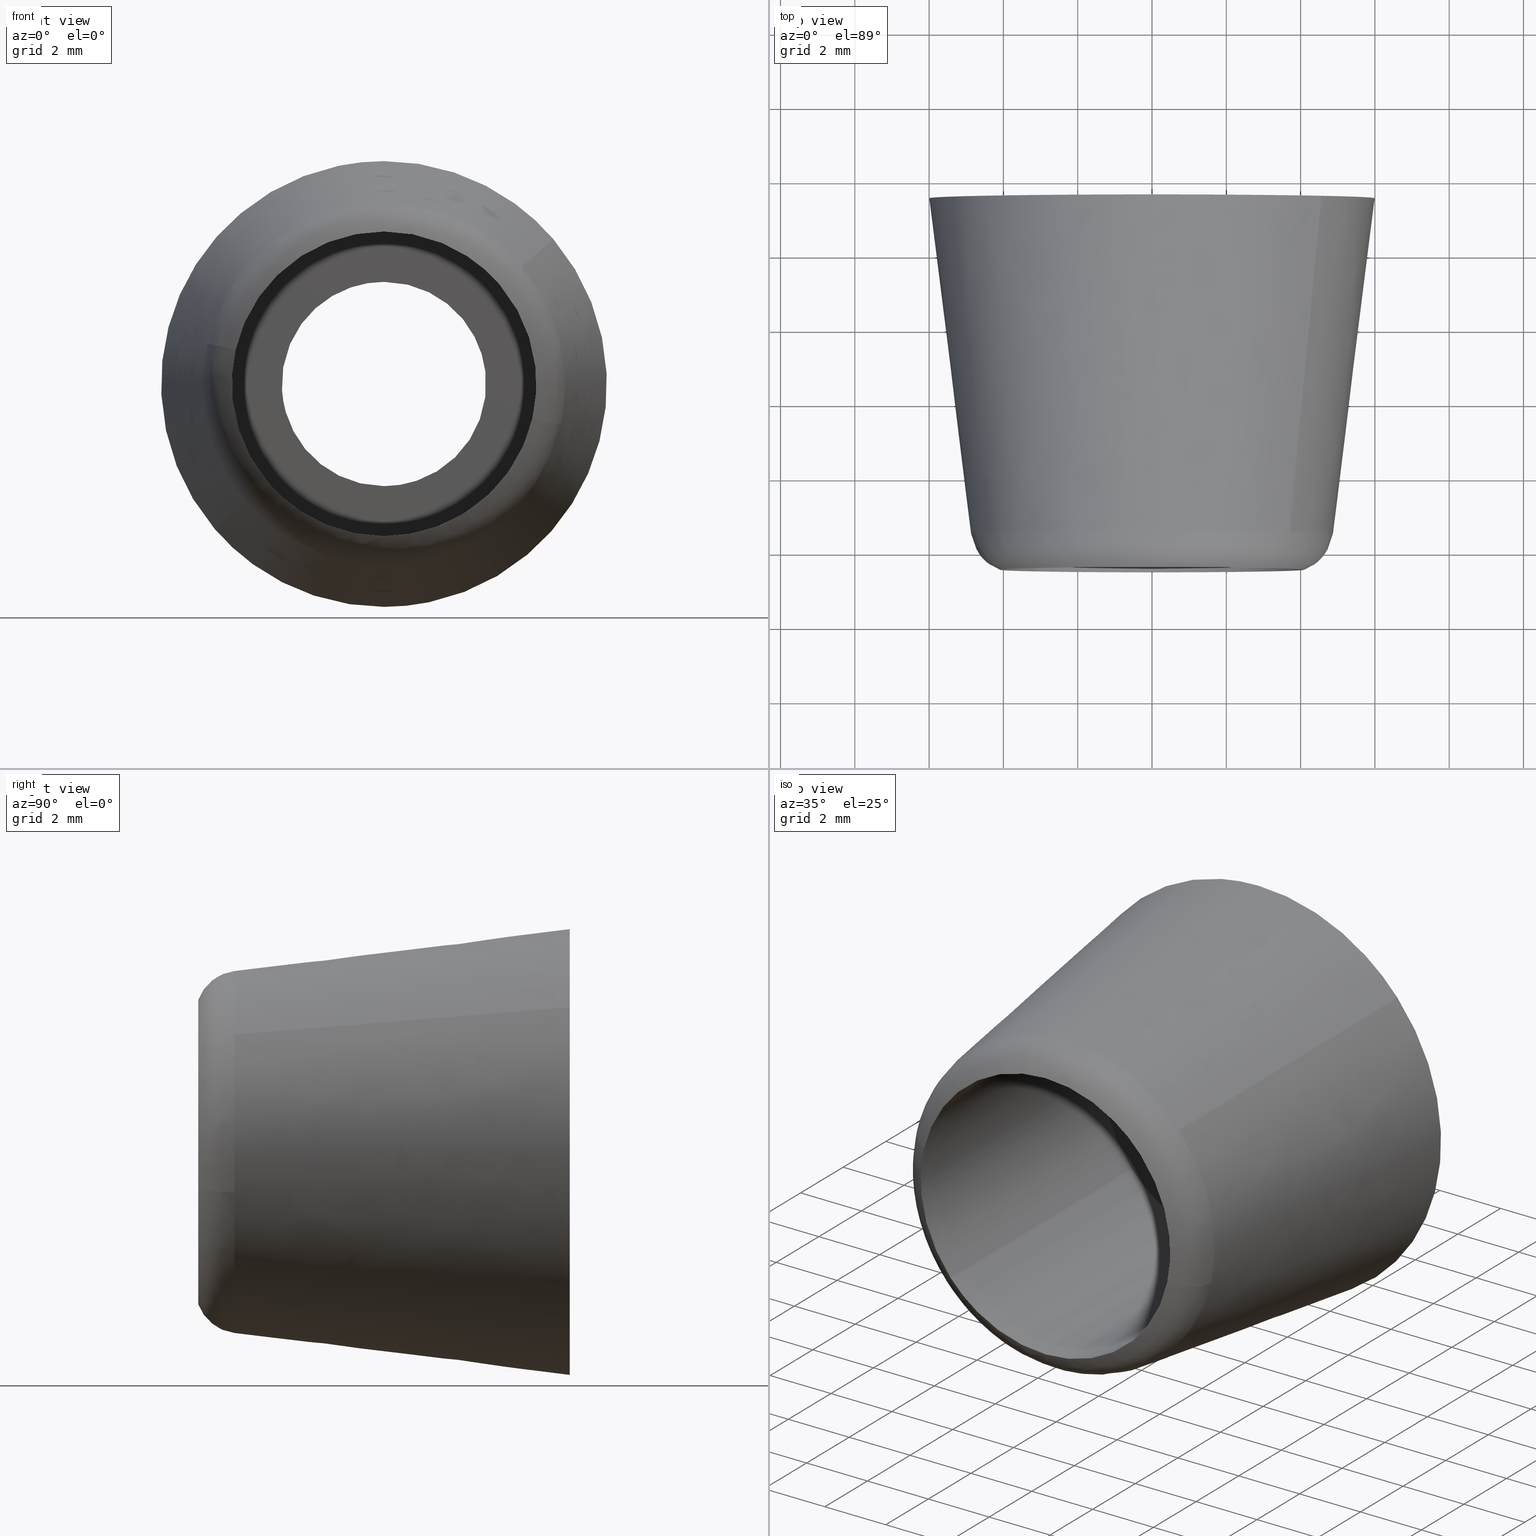
[diagram: canonical four-view strip — front | top / right | iso, engineering-drawing reading convention]
A machine part, canonical four-view strip (front | top / right | iso — engineering-drawing reading convention). The complete STEP part file that produces these views, byte-faithful:
ISO-10303-21;
HEADER;
/****************************************************************
 * Generated by software with PDE/Lib inside                    *
 * PDElib Version 4.4.1-0003, patched  Thursday August 19 11:58 *
 * International Technegroup Inc. (www.iti-oh.com)              *
 ****************************************************************/
FILE_DESCRIPTION((''),'2;1');
FILE_NAME('','2005-10-12T14:40:24',(''),(''),'','CADfix','');
FILE_SCHEMA(('AUTOMOTIVE_DESIGN'));
ENDSEC;
DATA;
#5=APPLICATION_CONTEXT('automotive design');
#6=APPLICATION_PROTOCOL_DEFINITION('Draft International Standard','automotive_design',1998,#5);
#7=PRODUCT_CONTEXT('None',#5,'mechanical');
#8=PRODUCT('facing ring','','None',(#7));
#9=PRODUCT_RELATED_PRODUCT_CATEGORY('part','description',(#8));
#10=PRODUCT_DEFINITION_FORMATION('None','None',#8);
#11=PRODUCT_DEFINITION_CONTEXT('part definition',#5,'design');
#12=PRODUCT_DEFINITION('None','None',#10,#11);
#18=(NAMED_UNIT(*)PLANE_ANGLE_UNIT()SI_UNIT($,.RADIAN.));
#19=DIMENSIONAL_EXPONENTS(0.0,0.0,0.0,0.0,0.0,0.0,0.0);
#20=PLANE_ANGLE_MEASURE_WITH_UNIT(PLANE_ANGLE_MEASURE(0.017453292500000),#18);
#24=(CONVERSION_BASED_UNIT('DEGREE',#20)NAMED_UNIT(#19)PLANE_ANGLE_UNIT());
#28=(NAMED_UNIT(*)SI_UNIT($,.STERADIAN.)SOLID_ANGLE_UNIT());
#32=(LENGTH_UNIT()NAMED_UNIT(*)SI_UNIT(.MILLI.,.METRE.));
#34=UNCERTAINTY_MEASURE_WITH_UNIT(LENGTH_MEASURE(0.001000000000000),#32,'DISTANCE_ACCURACY_VALUE','');
#36=(GEOMETRIC_REPRESENTATION_CONTEXT(3)GLOBAL_UNCERTAINTY_ASSIGNED_CONTEXT((#34))GLOBAL_UNIT_ASSIGNED_CONTEXT((#24,#28,#32))REPRESENTATION_CONTEXT('None','None'));
#37=AXIS2_PLACEMENT_3D('',#38,#39,#40);
#38=CARTESIAN_POINT('',(0.0,0.0,0.0));
#39=DIRECTION('',(0.0,0.0,1.0));
#40=DIRECTION('',(1.0,0.0,0.0));
#41=ADVANCED_BREP_SHAPE_REPRESENTATION('',(#37,#787),#36);
#42=PRODUCT_DEFINITION_SHAPE('','',#12);
#43=SHAPE_DEFINITION_REPRESENTATION(#42,#41);
#44=CARTESIAN_POINT('',(2.730776197500084,-0.037500000000000,0.324594145306086));
#45=CARTESIAN_POINT('',(2.740065942483665,-0.037500000000000,0.246440503754439));
#46=CARTESIAN_POINT('',(2.744870695660134,-0.037500000000000,0.167883483720857));
#47=CARTESIAN_POINT('',(2.912754179380990,-0.037500000000000,-2.576987211939278));
#48=CARTESIAN_POINT('',(0.167883483720857,-0.037500000000000,-2.744870695660134));
#49=CARTESIAN_POINT('',(-2.576987211939278,-0.037500000000000,-2.912754179380990));
#50=CARTESIAN_POINT('',(-2.744870695660134,-0.037500000000000,-0.167883483720857));
#51=CARTESIAN_POINT('',(2.730776197500084,1.538437500000000,0.324594145306086));
#52=CARTESIAN_POINT('',(2.740065942483665,1.538437500000001,0.246440503754439));
#53=CARTESIAN_POINT('',(2.744870695660134,1.538437500000000,0.167883483720857));
#54=CARTESIAN_POINT('',(2.912754179380990,1.538437500000001,-2.576987211939278));
#55=CARTESIAN_POINT('',(0.167883483720857,1.538437500000000,-2.744870695660134));
#56=CARTESIAN_POINT('',(-2.576987211939278,1.538437500000001,-2.912754179380990));
#57=CARTESIAN_POINT('',(-2.744870695660134,1.538437500000000,-0.167883483720857));
#65=(BOUNDED_SURFACE()B_SPLINE_SURFACE(2,1,((#44,#51),(#45,#52),(#46,#53),(#47,#54),(#48,#55),(#49,#56),(#50,#57)),.UNSPECIFIED.,.F.,.F.,.U.)B_SPLINE_SURFACE_WITH_KNOTS((3,2,2,3),(2,2),(0.0,0.182253967444162,4.738603153548208,9.294952339652255),(0.0,1.0),.UNSPECIFIED.)GEOMETRIC_REPRESENTATION_ITEM()RATIONAL_B_SPLINE_SURFACE(((0.977505800795127,0.977505800795127),(0.988284271247462,0.988284271247462),(1.0,1.0),(0.707106781186548,0.707106781186548),(1.0,1.0),(0.707106781186548,0.707106781186548),(1.0,1.0)))REPRESENTATION_ITEM('')SURFACE());
#66=CARTESIAN_POINT('',(2.730776731083356,4.981067E-014,0.324589656263510));
#67=VERTEX_POINT('',#66);
#68=CARTESIAN_POINT('',(0.0,0.0,-2.750000000000000));
#69=VERTEX_POINT('',#68);
#70=CARTESIAN_POINT('',(2.730776731083356,4.981067E-014,0.324589656263510));
#71=CARTESIAN_POINT('',(2.750000000000000,0.0,0.162864060793226));
#72=CARTESIAN_POINT('',(2.750000000000000,0.0,0.0));
#73=CARTESIAN_POINT('',(2.750000000000000,0.0,-2.750000000000000));
#74=CARTESIAN_POINT('',(0.0,0.0,-2.750000000000000));
#82=(BOUNDED_CURVE()B_SPLINE_CURVE(2,(#70,#71,#72,#73,#74),.UNSPECIFIED.,.F.,.U.)B_SPLINE_CURVE_WITH_KNOTS((3,2,3),(0.229562751335135,0.250000000000000,0.500000000000000),.UNSPECIFIED.)CURVE()GEOMETRIC_REPRESENTATION_ITEM()RATIONAL_B_SPLINE_CURVE((0.956027298726181,0.976056273819427,1.0,0.707106781186548,1.0))REPRESENTATION_ITEM(''));
#83=EDGE_CURVE('',#67,#69,#82,.T.);
#84=ORIENTED_EDGE('',*,*,#83,.F.);
#85=CARTESIAN_POINT('',(2.730776724657624,1.500000000000000,0.324589710324017));
#86=VERTEX_POINT('',#85);
#87=CARTESIAN_POINT('',(2.730776731083356,4.981067E-014,0.324589656263510));
#88=CARTESIAN_POINT('',(2.730776724657624,1.500000000000000,0.324589710324017));
#89=QUASI_UNIFORM_CURVE('',1,(#87,#88),.UNSPECIFIED.,.F.,.U.);
#90=EDGE_CURVE('',#67,#86,#89,.T.);
#91=ORIENTED_EDGE('',*,*,#90,.T.);
#92=CARTESIAN_POINT('',(0.0,1.500000000000000,-2.750000000000000));
#93=VERTEX_POINT('',#92);
#94=CARTESIAN_POINT('',(2.730776724657625,1.500000000000000,0.324589710324016));
#95=CARTESIAN_POINT('',(2.750000000000000,1.500000000000000,0.162864088109226));
#96=CARTESIAN_POINT('',(2.750000000000000,1.500000000000000,0.0));
#97=CARTESIAN_POINT('',(2.750000000000000,1.500000000000000,-2.750000000000000));
#98=CARTESIAN_POINT('',(0.0,1.500000000000000,-2.750000000000000));
#106=(BOUNDED_CURVE()B_SPLINE_CURVE(2,(#94,#95,#96,#97,#98),.UNSPECIFIED.,.F.,.U.)B_SPLINE_CURVE_WITH_KNOTS((3,2,3),(0.229562747989419,0.250000000000000,0.500000000000000),.UNSPECIFIED.)CURVE()GEOMETRIC_REPRESENTATION_ITEM()RATIONAL_B_SPLINE_CURVE((0.956027292168423,0.976056269899677,1.0,0.707106781186548,1.0))REPRESENTATION_ITEM(''));
#107=EDGE_CURVE('',#86,#93,#106,.T.);
#108=ORIENTED_EDGE('',*,*,#107,.T.);
#109=CARTESIAN_POINT('',(-2.744870732306453,1.500000000000000,-0.167882884556682));
#110=VERTEX_POINT('',#109);
#111=CARTESIAN_POINT('',(0.0,1.500000000000000,-2.750000000000000));
#112=CARTESIAN_POINT('',(-2.586942815482608,1.499999999999999,-2.750000000000000));
#113=CARTESIAN_POINT('',(-2.744870732306454,1.500000000000000,-0.167882884556682));
#121=(BOUNDED_CURVE()B_SPLINE_CURVE(2,(#111,#112,#113),.UNSPECIFIED.,.F.,.U.)B_SPLINE_CURVE_WITH_KNOTS((3,3),(0.500000000000000,0.739333037570735),.UNSPECIFIED.)CURVE()GEOMETRIC_REPRESENTATION_ITEM()RATIONAL_B_SPLINE_CURVE((1.0,0.719603905030026,0.976072203117141))REPRESENTATION_ITEM(''));
#122=EDGE_CURVE('',#93,#110,#121,.T.);
#123=ORIENTED_EDGE('',*,*,#122,.T.);
#124=CARTESIAN_POINT('',(-2.744870732754064,-2.588207E-015,-0.167882877238264));
#125=VERTEX_POINT('',#124);
#126=CARTESIAN_POINT('',(-2.744870732754064,-2.588207E-015,-0.167882877238264));
#127=CARTESIAN_POINT('',(-2.744870732306453,1.500000000000000,-0.167882884556682));
#128=QUASI_UNIFORM_CURVE('',1,(#126,#127),.UNSPECIFIED.,.F.,.U.);
#129=EDGE_CURVE('',#125,#110,#128,.T.);
#130=ORIENTED_EDGE('',*,*,#129,.F.);
#131=CARTESIAN_POINT('',(0.0,0.0,-2.750000000000000));
#132=CARTESIAN_POINT('',(-2.586942829303095,0.0,-2.750000000000000));
#133=CARTESIAN_POINT('',(-2.744870732754064,-2.588207E-015,-0.167882877238264));
#141=(BOUNDED_CURVE()B_SPLINE_CURVE(2,(#131,#132,#133),.UNSPECIFIED.,.F.,.U.)B_SPLINE_CURVE_WITH_KNOTS((3,3),(0.500000000000000,0.739333038490830),.UNSPECIFIED.)CURVE()GEOMETRIC_REPRESENTATION_ITEM()RATIONAL_B_SPLINE_CURVE((1.0,0.719603903952068,0.976072205089081))REPRESENTATION_ITEM(''));
#142=EDGE_CURVE('',#69,#125,#141,.T.);
#143=ORIENTED_EDGE('',*,*,#142,.F.);
#144=EDGE_LOOP('',(#84,#91,#108,#123,#130,#143));
#145=FACE_OUTER_BOUND('',#144,.T.);
#146=ADVANCED_FACE('',(#145),#65,.F.);
#147=CARTESIAN_POINT('',(-2.742557265340139,-0.037500000000000,-0.205707735106791));
#148=CARTESIAN_POINT('',(-2.743710669871910,-0.037500000000000,-0.186849737706869));
#149=CARTESIAN_POINT('',(-2.912754179380990,-0.037500000000000,2.576987211939278));
#150=CARTESIAN_POINT('',(-0.167883483720857,-0.037500000000000,2.744870695660134));
#151=CARTESIAN_POINT('',(2.424244599808628,-0.037500000000000,2.903412041014450));
#152=CARTESIAN_POINT('',(2.733071348045089,-0.037500000000000,0.305285286632515));
#153=CARTESIAN_POINT('',(2.735354163135321,-0.037500000000000,0.286080204834699));
#154=CARTESIAN_POINT('',(-2.742557265340139,1.538437500000001,-0.205707735106791));
#155=CARTESIAN_POINT('',(-2.743710669871910,1.538437500000000,-0.186849737706869));
#156=CARTESIAN_POINT('',(-2.912754179380990,1.538437500000001,2.576987211939278));
#157=CARTESIAN_POINT('',(-0.167883483720857,1.538437500000000,2.744870695660134));
#158=CARTESIAN_POINT('',(2.424244599808628,1.538437500000000,2.903412041014450));
#159=CARTESIAN_POINT('',(2.733071348045089,1.538437500000001,0.305285286632515));
#160=CARTESIAN_POINT('',(2.735354163135321,1.538437500000001,0.286080204834699));
#168=(BOUNDED_SURFACE()B_SPLINE_SURFACE(2,1,((#147,#154),(#148,#155),(#149,#156),(#150,#157),(#151,#158),(#152,#159),(#153,#160)),.UNSPECIFIED.,.F.,.F.,.U.)B_SPLINE_SURFACE_WITH_KNOTS((3,1,2,1,3),(2,2),(0.0,0.044651540118817,4.601000726222861,8.975095944882744,9.019753365405562),(0.0,1.0),.UNSPECIFIED.)GEOMETRIC_REPRESENTATION_ITEM()RATIONAL_B_SPLINE_SURFACE(((1.005740619419716,1.005740619419716),(1.002870309709858,1.002870309709858),(0.707106781186548,0.707106781186548),(1.0,1.0),(0.718822509939086,0.718822509939086),(0.980146833494347,0.980146833494347),(0.982787866193567,0.982787866193567)))REPRESENTATION_ITEM('')SURFACE());
#169=CARTESIAN_POINT('',(0.0,0.0,2.750000000000000));
#170=VERTEX_POINT('',#169);
#171=CARTESIAN_POINT('',(0.0,0.0,2.750000000000000));
#172=CARTESIAN_POINT('',(2.442483989754464,0.0,2.750000000000000));
#173=CARTESIAN_POINT('',(2.730776731083356,4.981067E-014,0.324589656263510));
#181=(BOUNDED_CURVE()B_SPLINE_CURVE(2,(#171,#172,#173),.UNSPECIFIED.,.F.,.U.)B_SPLINE_CURVE_WITH_KNOTS((3,3),(0.0,0.229562751335135),.UNSPECIFIED.)CURVE()GEOMETRIC_REPRESENTATION_ITEM()RATIONAL_B_SPLINE_CURVE((1.0,0.731050507367120,0.956027298726181))REPRESENTATION_ITEM(''));
#182=EDGE_CURVE('',#170,#67,#181,.T.);
#183=ORIENTED_EDGE('',*,*,#182,.F.);
#184=CARTESIAN_POINT('',(-2.744870732754063,-2.588207E-015,-0.167882877238264));
#185=CARTESIAN_POINT('',(-2.750000000000000,0.0,-0.084019490888021));
#186=CARTESIAN_POINT('',(-2.750000000000000,0.0,0.0));
#187=CARTESIAN_POINT('',(-2.750000000000000,0.0,2.750000000000000));
#188=CARTESIAN_POINT('',(0.0,0.0,2.750000000000000));
#196=(BOUNDED_CURVE()B_SPLINE_CURVE(2,(#184,#185,#186,#187,#188),.UNSPECIFIED.,.F.,.U.)B_SPLINE_CURVE_WITH_KNOTS((3,2,3),(0.739333038490829,0.750000000000000,1.0),.UNSPECIFIED.)CURVE()GEOMETRIC_REPRESENTATION_ITEM()RATIONAL_B_SPLINE_CURVE((0.976072205089079,0.987502877234479,1.0,0.707106781186548,1.0))REPRESENTATION_ITEM(''));
#197=EDGE_CURVE('',#125,#170,#196,.T.);
#198=ORIENTED_EDGE('',*,*,#197,.F.);
#199=ORIENTED_EDGE('',*,*,#129,.T.);
#200=CARTESIAN_POINT('',(0.0,1.500000000000000,2.750000000000000));
#201=VERTEX_POINT('',#200);
#202=CARTESIAN_POINT('',(-2.744870732306453,1.500000000000000,-0.167882884556682));
#203=CARTESIAN_POINT('',(-2.749999999999999,1.500000000000000,-0.084019498226959));
#204=CARTESIAN_POINT('',(-2.750000000000000,1.500000000000000,0.0));
#205=CARTESIAN_POINT('',(-2.750000000000000,1.500000000000000,2.750000000000000));
#206=CARTESIAN_POINT('',(0.0,1.500000000000000,2.750000000000000));
#214=(BOUNDED_CURVE()B_SPLINE_CURVE(2,(#202,#203,#204,#205,#206),.UNSPECIFIED.,.F.,.U.)B_SPLINE_CURVE_WITH_KNOTS((3,2,3),(0.739333037570735,0.750000000000000,1.0),.UNSPECIFIED.)CURVE()GEOMETRIC_REPRESENTATION_ITEM()RATIONAL_B_SPLINE_CURVE((0.976072203117141,0.987502876156522,1.0,0.707106781186548,1.0))REPRESENTATION_ITEM(''));
#215=EDGE_CURVE('',#110,#201,#214,.T.);
#216=ORIENTED_EDGE('',*,*,#215,.T.);
#217=CARTESIAN_POINT('',(0.0,1.500000000000000,2.750000000000000));
#218=CARTESIAN_POINT('',(2.442483941060845,1.500000000000001,2.750000000000000));
#219=CARTESIAN_POINT('',(2.730776724657625,1.500000000000000,0.324589710324016));
#227=(BOUNDED_CURVE()B_SPLINE_CURVE(2,(#217,#218,#219),.UNSPECIFIED.,.F.,.U.)B_SPLINE_CURVE_WITH_KNOTS((3,3),(0.0,0.229562747989419),.UNSPECIFIED.)CURVE()GEOMETRIC_REPRESENTATION_ITEM()RATIONAL_B_SPLINE_CURVE((1.0,0.731050511286871,0.956027292168423))REPRESENTATION_ITEM(''));
#228=EDGE_CURVE('',#201,#86,#227,.T.);
#229=ORIENTED_EDGE('',*,*,#228,.T.);
#230=ORIENTED_EDGE('',*,*,#90,.F.);
#231=EDGE_LOOP('',(#183,#198,#199,#216,#229,#230));
#232=FACE_OUTER_BOUND('',#231,.T.);
#233=ADVANCED_FACE('',(#232),#168,.F.);
#234=CARTESIAN_POINT('',(3.683226864379310,-7.749889864050111,3.145772925046535));
#235=CARTESIAN_POINT('',(6.828999789425845,-7.749889864050111,-0.537453939332775));
#236=CARTESIAN_POINT('',(3.145772925046535,-7.749889864050112,-3.683226864379310));
#237=CARTESIAN_POINT('',(-0.537453939332775,-7.749889864050113,-6.828999789425845));
#238=CARTESIAN_POINT('',(-3.683226864379310,-7.749889864050113,-3.145772925046535));
#239=CARTESIAN_POINT('',(4.584416016830699,1.731247246601255,3.915461174104458));
#240=CARTESIAN_POINT('',(8.499877190935155,1.731247246601254,-0.668954842726241));
#241=CARTESIAN_POINT('',(3.915461174104458,1.731247246601254,-4.584416016830699));
#242=CARTESIAN_POINT('',(-0.668954842726241,1.731247246601253,-8.499877190935155));
#243=CARTESIAN_POINT('',(-4.584416016830699,1.731247246601253,-3.915461174104458));
#251=(BOUNDED_SURFACE()B_SPLINE_SURFACE(2,1,((#234,#239),(#235,#240),(#236,#241),(#237,#242),(#238,#243)),.UNSPECIFIED.,.F.,.F.,.U.)B_SPLINE_SURFACE_WITH_KNOTS((3,2,3),(2,2),(0.0,9.989018369856099,19.978036739712199),(0.0,9.554921391628739),.UNSPECIFIED.)GEOMETRIC_REPRESENTATION_ITEM()RATIONAL_B_SPLINE_SURFACE(((1.0,1.0),(0.707106781186548,0.707106781186548),(1.0,1.0),(0.707106781186548,0.707106781186548),(1.0,1.0)))REPRESENTATION_ITEM('')SURFACE());
#252=CARTESIAN_POINT('',(3.704671224964666,-7.524284922881888,3.164087242810569));
#253=VERTEX_POINT('',#252);
#254=CARTESIAN_POINT('',(4.747861204940968,-7.524282790642049,-1.092636051415756));
#255=VERTEX_POINT('',#254);
#256=CARTESIAN_POINT('',(3.704671224964665,-7.524284922881888,3.164087242810569));
#257=CARTESIAN_POINT('',(4.871964522502872,-7.524284143187063,1.797362154721066));
#258=CARTESIAN_POINT('',(4.871964603095937,-7.524283295292181,-0.000000040679555));
#259=CARTESIAN_POINT('',(4.871964627908664,-7.524283034245102,-0.553365984550682));
#260=CARTESIAN_POINT('',(4.747861204940968,-7.524282790642049,-1.092636051415756));
#268=(BOUNDED_CURVE()B_SPLINE_CURVE(2,(#256,#257,#258,#259,#260),.UNSPECIFIED.,.F.,.U.)B_SPLINE_CURVE_WITH_KNOTS((3,2,3),(0.136856859794303,0.250000000000000,0.288352803394359),.UNSPECIFIED.)CURVE()GEOMETRIC_REPRESENTATION_ITEM()RATIONAL_B_SPLINE_CURVE((0.854871036338518,0.867444565913966,1.0,0.955066895853227,0.923920275780370))REPRESENTATION_ITEM(''));
#269=EDGE_CURVE('',#253,#255,#268,.T.);
#270=ORIENTED_EDGE('',*,*,#269,.T.);
#271=CARTESIAN_POINT('',(0.0,-7.524282794195230,-4.871964650725590));
#272=VERTEX_POINT('',#271);
#273=CARTESIAN_POINT('',(4.747861204940968,-7.524282790642049,-1.092636051415756));
#274=CARTESIAN_POINT('',(3.878115755007902,-7.524282794195229,-4.871964650725589));
#275=CARTESIAN_POINT('',(0.0,-7.524282794195230,-4.871964650725590));
#283=(BOUNDED_CURVE()B_SPLINE_CURVE(2,(#273,#274,#275),.UNSPECIFIED.,.F.,.U.)B_SPLINE_CURVE_WITH_KNOTS((3,3),(0.288352803394359,0.500000000000000),.UNSPECIFIED.)CURVE()GEOMETRIC_REPRESENTATION_ITEM()RATIONAL_B_SPLINE_CURVE((0.923920275780370,0.752039885333320,1.0))REPRESENTATION_ITEM(''));
#284=EDGE_CURVE('',#255,#272,#283,.T.);
#285=ORIENTED_EDGE('',*,*,#284,.T.);
#286=CARTESIAN_POINT('',(-3.704671224964667,-7.524284922881888,-3.164087242810568));
#287=VERTEX_POINT('',#286);
#288=CARTESIAN_POINT('',(0.0,-7.524282794195230,-4.871964650725590));
#289=CARTESIAN_POINT('',(-2.246006779741699,-7.524283858538559,-4.871964564321126));
#290=CARTESIAN_POINT('',(-3.704671224964666,-7.524284922881888,-3.164087242810568));
#298=(BOUNDED_CURVE()B_SPLINE_CURVE(2,(#288,#289,#290),.UNSPECIFIED.,.F.,.U.)B_SPLINE_CURVE_WITH_KNOTS((3,3),(0.500000000000000,0.636856859794303),.UNSPECIFIED.)CURVE()GEOMETRIC_REPRESENTATION_ITEM()RATIONAL_B_SPLINE_CURVE((1.0,0.839662215272581,0.854871036338518))REPRESENTATION_ITEM(''));
#299=EDGE_CURVE('',#272,#287,#298,.T.);
#300=ORIENTED_EDGE('',*,*,#299,.T.);
#301=CARTESIAN_POINT('',(-4.562435850056587,1.499999495957191,-3.896688126865445));
#302=VERTEX_POINT('',#301);
#303=CARTESIAN_POINT('',(-3.704671224964667,-7.524284922881888,-3.164087242810568));
#304=CARTESIAN_POINT('',(-4.562435850056587,1.499999495957191,-3.896688126865445));
#305=QUASI_UNIFORM_CURVE('',1,(#303,#304),.UNSPECIFIED.,.F.,.U.);
#306=EDGE_CURVE('',#287,#302,#305,.T.);
#307=ORIENTED_EDGE('',*,*,#306,.T.);
#308=CARTESIAN_POINT('',(0.0,1.500000000000000,-6.0));
#309=VERTEX_POINT('',#308);
#310=CARTESIAN_POINT('',(0.0,1.500000000000000,-6.0));
#311=CARTESIAN_POINT('',(-2.766038081416517,1.500000000000000,-6.000000000000001));
#312=CARTESIAN_POINT('',(-4.562435850056587,1.499999495957191,-3.896688126865444));
#320=(BOUNDED_CURVE()B_SPLINE_CURVE(2,(#310,#311,#312),.UNSPECIFIED.,.F.,.U.)B_SPLINE_CURVE_WITH_KNOTS((3,3),(0.500000000000000,0.636856846745670),.UNSPECIFIED.)CURVE()GEOMETRIC_REPRESENTATION_ITEM()RATIONAL_B_SPLINE_CURVE((1.0,0.839662230560006,0.854871033438346))REPRESENTATION_ITEM(''));
#321=EDGE_CURVE('',#309,#302,#320,.T.);
#322=ORIENTED_EDGE('',*,*,#321,.F.);
#323=CARTESIAN_POINT('',(4.562435850056586,1.499999495957190,3.896688126865445));
#324=VERTEX_POINT('',#323);
#325=CARTESIAN_POINT('',(4.562435850056586,1.499999495957190,3.896688126865445));
#326=CARTESIAN_POINT('',(6.000000000000001,1.500000000000000,2.213516680087875));
#327=CARTESIAN_POINT('',(6.0,1.500000000000000,0.0));
#328=CARTESIAN_POINT('',(6.0,1.500000000000000,-6.0));
#329=CARTESIAN_POINT('',(0.0,1.500000000000000,-6.0));
#337=(BOUNDED_CURVE()B_SPLINE_CURVE(2,(#325,#326,#327,#328,#329),.UNSPECIFIED.,.F.,.U.)B_SPLINE_CURVE_WITH_KNOTS((3,2,3),(0.136856846745670,0.250000000000000,0.500000000000000),.UNSPECIFIED.)CURVE()GEOMETRIC_REPRESENTATION_ITEM()RATIONAL_B_SPLINE_CURVE((0.854871033438346,0.867444550626542,1.0,0.707106781186548,1.0))REPRESENTATION_ITEM(''));
#338=EDGE_CURVE('',#324,#309,#337,.T.);
#339=ORIENTED_EDGE('',*,*,#338,.F.);
#340=CARTESIAN_POINT('',(3.704671224964666,-7.524284922881888,3.164087242810569));
#341=CARTESIAN_POINT('',(4.562435850056586,1.499999495957190,3.896688126865445));
#342=QUASI_UNIFORM_CURVE('',1,(#340,#341),.UNSPECIFIED.,.F.,.U.);
#343=EDGE_CURVE('',#253,#324,#342,.T.);
#344=ORIENTED_EDGE('',*,*,#343,.F.);
#345=EDGE_LOOP('',(#270,#285,#300,#307,#322,#339,#344));
#346=FACE_OUTER_BOUND('',#345,.T.);
#347=ADVANCED_FACE('',(#346),#251,.T.);
#348=CARTESIAN_POINT('',(-3.683226864379310,-7.749889864050113,-3.145772925046535));
#349=CARTESIAN_POINT('',(-6.828999789425845,-7.749889864050113,0.537453939332775));
#350=CARTESIAN_POINT('',(-3.145772925046535,-7.749889864050112,3.683226864379310));
#351=CARTESIAN_POINT('',(0.537453939332775,-7.749889864050111,6.828999789425845));
#352=CARTESIAN_POINT('',(3.683226864379310,-7.749889864050111,3.145772925046535));
#353=CARTESIAN_POINT('',(-4.584416016830699,1.731247246601253,-3.915461174104458));
#354=CARTESIAN_POINT('',(-8.499877190935155,1.731247246601253,0.668954842726241));
#355=CARTESIAN_POINT('',(-3.915461174104458,1.731247246601254,4.584416016830699));
#356=CARTESIAN_POINT('',(0.668954842726241,1.731247246601254,8.499877190935155));
#357=CARTESIAN_POINT('',(4.584416016830699,1.731247246601255,3.915461174104458));
#365=(BOUNDED_SURFACE()B_SPLINE_SURFACE(2,1,((#348,#353),(#349,#354),(#350,#355),(#351,#356),(#352,#357)),.UNSPECIFIED.,.F.,.F.,.U.)B_SPLINE_SURFACE_WITH_KNOTS((3,2,3),(2,2),(0.0,9.989018369856099,19.978036739712199),(0.0,9.554921391628739),.UNSPECIFIED.)GEOMETRIC_REPRESENTATION_ITEM()RATIONAL_B_SPLINE_SURFACE(((1.0,1.0),(0.707106781186548,0.707106781186548),(1.0,1.0),(0.707106781186548,0.707106781186548),(1.0,1.0)))REPRESENTATION_ITEM('')SURFACE());
#366=CARTESIAN_POINT('',(0.0,-7.524282794195230,4.871964650725590));
#367=VERTEX_POINT('',#366);
#368=CARTESIAN_POINT('',(0.0,-7.524282794195230,4.871964650725590));
#369=CARTESIAN_POINT('',(2.246006779741699,-7.524283858538559,4.871964564321126));
#370=CARTESIAN_POINT('',(3.704671224964665,-7.524284922881888,3.164087242810569));
#378=(BOUNDED_CURVE()B_SPLINE_CURVE(2,(#368,#369,#370),.UNSPECIFIED.,.F.,.U.)B_SPLINE_CURVE_WITH_KNOTS((3,3),(0.0,0.136856859794303),.UNSPECIFIED.)CURVE()GEOMETRIC_REPRESENTATION_ITEM()RATIONAL_B_SPLINE_CURVE((1.0,0.839662215272581,0.854871036338518))REPRESENTATION_ITEM(''));
#379=EDGE_CURVE('',#367,#253,#378,.T.);
#380=ORIENTED_EDGE('',*,*,#379,.T.);
#381=ORIENTED_EDGE('',*,*,#343,.T.);
#382=CARTESIAN_POINT('',(0.0,1.500000000000000,6.0));
#383=VERTEX_POINT('',#382);
#384=CARTESIAN_POINT('',(0.0,1.500000000000000,6.0));
#385=CARTESIAN_POINT('',(2.766038081416509,1.500000000000000,6.000000000000001));
#386=CARTESIAN_POINT('',(4.562435850056586,1.499999495957190,3.896688126865445));
#394=(BOUNDED_CURVE()B_SPLINE_CURVE(2,(#384,#385,#386),.UNSPECIFIED.,.F.,.U.)B_SPLINE_CURVE_WITH_KNOTS((3,3),(0.0,0.136856846745670),.UNSPECIFIED.)CURVE()GEOMETRIC_REPRESENTATION_ITEM()RATIONAL_B_SPLINE_CURVE((1.0,0.839662230560006,0.854871033438346))REPRESENTATION_ITEM(''));
#395=EDGE_CURVE('',#383,#324,#394,.T.);
#396=ORIENTED_EDGE('',*,*,#395,.F.);
#397=CARTESIAN_POINT('',(-4.562435850056586,1.499999495957191,-3.896688126865445));
#398=CARTESIAN_POINT('',(-6.000000000000001,1.500000000000000,-2.213516680087875));
#399=CARTESIAN_POINT('',(-6.0,1.500000000000000,0.0));
#400=CARTESIAN_POINT('',(-6.0,1.500000000000000,6.0));
#401=CARTESIAN_POINT('',(0.0,1.500000000000000,6.0));
#409=(BOUNDED_CURVE()B_SPLINE_CURVE(2,(#397,#398,#399,#400,#401),.UNSPECIFIED.,.F.,.U.)B_SPLINE_CURVE_WITH_KNOTS((3,2,3),(0.636856846745670,0.750000000000000,1.0),.UNSPECIFIED.)CURVE()GEOMETRIC_REPRESENTATION_ITEM()RATIONAL_B_SPLINE_CURVE((0.854871033438346,0.867444550626542,1.0,0.707106781186548,1.0))REPRESENTATION_ITEM(''));
#410=EDGE_CURVE('',#302,#383,#409,.T.);
#411=ORIENTED_EDGE('',*,*,#410,.F.);
#412=ORIENTED_EDGE('',*,*,#306,.F.);
#413=CARTESIAN_POINT('',(-4.747861204940969,-7.524282790642049,1.092636051415755));
#414=VERTEX_POINT('',#413);
#415=CARTESIAN_POINT('',(-3.704671224964666,-7.524284922881888,-3.164087242810568));
#416=CARTESIAN_POINT('',(-4.871964522502873,-7.524284143187063,-1.797362154721066));
#417=CARTESIAN_POINT('',(-4.871964603095937,-7.524283295292181,0.000000040679555));
#418=CARTESIAN_POINT('',(-4.871964627908664,-7.524283034245102,0.553365984550682));
#419=CARTESIAN_POINT('',(-4.747861204940969,-7.524282790642049,1.092636051415755));
#427=(BOUNDED_CURVE()B_SPLINE_CURVE(2,(#415,#416,#417,#418,#419),.UNSPECIFIED.,.F.,.U.)B_SPLINE_CURVE_WITH_KNOTS((3,2,3),(0.636856859794303,0.750000000000000,0.788352803394359),.UNSPECIFIED.)CURVE()GEOMETRIC_REPRESENTATION_ITEM()RATIONAL_B_SPLINE_CURVE((0.854871036338518,0.867444565913966,1.0,0.955066895853227,0.923920275780370))REPRESENTATION_ITEM(''));
#428=EDGE_CURVE('',#287,#414,#427,.T.);
#429=ORIENTED_EDGE('',*,*,#428,.T.);
#430=CARTESIAN_POINT('',(-4.747861204940969,-7.524282790642049,1.092636051415755));
#431=CARTESIAN_POINT('',(-3.878115755007902,-7.524282794195229,4.871964650725589));
#432=CARTESIAN_POINT('',(0.0,-7.524282794195230,4.871964650725590));
#440=(BOUNDED_CURVE()B_SPLINE_CURVE(2,(#430,#431,#432),.UNSPECIFIED.,.F.,.U.)B_SPLINE_CURVE_WITH_KNOTS((3,3),(0.788352803394359,1.0),.UNSPECIFIED.)CURVE()GEOMETRIC_REPRESENTATION_ITEM()RATIONAL_B_SPLINE_CURVE((0.923920275780370,0.752039885333320,1.0))REPRESENTATION_ITEM(''));
#441=EDGE_CURVE('',#414,#367,#440,.T.);
#442=ORIENTED_EDGE('',*,*,#441,.T.);
#443=EDGE_LOOP('',(#380,#381,#396,#411,#412,#429,#442));
#444=FACE_OUTER_BOUND('',#443,.T.);
#445=ADVANCED_FACE('',(#444),#365,.T.);
#446=CARTESIAN_POINT('',(3.117664458960126,-8.712500000000002,2.662736998153752));
#447=CARTESIAN_POINT('',(5.780401457113880,-8.712500000000002,-0.454927460806374));
#448=CARTESIAN_POINT('',(2.662736998153752,-8.712500000000002,-3.117664458960126));
#449=CARTESIAN_POINT('',(-0.454927460806374,-8.712500000000002,-5.780401457113880));
#450=CARTESIAN_POINT('',(-3.117664458960126,-8.712500000000002,-2.662736998153752));
#451=CARTESIAN_POINT('',(3.117664458960126,0.217812500000001,2.662736998153752));
#452=CARTESIAN_POINT('',(5.780401457113880,0.217812500000001,-0.454927460806374));
#453=CARTESIAN_POINT('',(2.662736998153752,0.217812500000001,-3.117664458960126));
#454=CARTESIAN_POINT('',(-0.454927460806374,0.217812500000001,-5.780401457113880));
#455=CARTESIAN_POINT('',(-3.117664458960126,0.217812500000001,-2.662736998153752));
#463=(BOUNDED_SURFACE()B_SPLINE_SURFACE(2,1,((#446,#451),(#447,#452),(#448,#453),(#449,#454),(#450,#455)),.UNSPECIFIED.,.F.,.F.,.U.)B_SPLINE_SURFACE_WITH_KNOTS((3,2,3),(2,2),(0.0,6.793102422918758,13.586204845837520),(0.0,8.930312500000003),.UNSPECIFIED.)GEOMETRIC_REPRESENTATION_ITEM()RATIONAL_B_SPLINE_SURFACE(((1.0,1.0),(0.707106781186548,0.707106781186548),(1.0,1.0),(0.707106781186548,0.707106781186548),(1.0,1.0)))REPRESENTATION_ITEM('')SURFACE());
#464=CARTESIAN_POINT('',(3.117664501935782,-8.500000000000000,2.662736947835723));
#465=VERTEX_POINT('',#464);
#466=CARTESIAN_POINT('',(3.995560178538304,-8.499999999954829,-0.919510119940747));
#467=VERTEX_POINT('',#466);
#468=CARTESIAN_POINT('',(3.117664501935783,-8.500000000000000,2.662736947835723));
#469=CARTESIAN_POINT('',(4.100000000000001,-8.500000000000000,1.512569780971512));
#470=CARTESIAN_POINT('',(4.100000000000001,-8.500000000000000,0.0));
#471=CARTESIAN_POINT('',(4.100000000000001,-8.500000000000000,-0.465686303189211));
#472=CARTESIAN_POINT('',(3.995560178538303,-8.499999999954829,-0.919510119940747));
#480=(BOUNDED_CURVE()B_SPLINE_CURVE(2,(#468,#469,#470,#471,#472),.UNSPECIFIED.,.F.,.U.)B_SPLINE_CURVE_WITH_KNOTS((3,2,3),(0.136856843528716,0.250000000000000,0.288352912383625),.UNSPECIFIED.)CURVE()GEOMETRIC_REPRESENTATION_ITEM()RATIONAL_B_SPLINE_CURVE((0.854871032723351,0.867444546857646,1.0,0.955066768164358,0.923920098758361))REPRESENTATION_ITEM(''));
#481=EDGE_CURVE('',#465,#467,#480,.T.);
#482=ORIENTED_EDGE('',*,*,#481,.F.);
#483=CARTESIAN_POINT('',(3.117664501418083,7.910339E-016,2.662736948441872));
#484=VERTEX_POINT('',#483);
#485=CARTESIAN_POINT('',(3.117664501935782,-8.500000000000000,2.662736947835723));
#486=CARTESIAN_POINT('',(3.117664501418083,7.910339E-016,2.662736948441872));
#487=QUASI_UNIFORM_CURVE('',1,(#485,#486),.UNSPECIFIED.,.F.,.U.);
#488=EDGE_CURVE('',#465,#484,#487,.T.);
#489=ORIENTED_EDGE('',*,*,#488,.T.);
#490=CARTESIAN_POINT('',(0.0,0.0,-4.100000000000001));
#491=VERTEX_POINT('',#490);
#492=CARTESIAN_POINT('',(3.117664501418083,7.910339E-016,2.662736948441872));
#493=CARTESIAN_POINT('',(4.100000000000001,0.0,1.512569781877143));
#494=CARTESIAN_POINT('',(4.100000000000001,0.0,0.0));
#495=CARTESIAN_POINT('',(4.100000000000001,0.0,-4.100000000000001));
#496=CARTESIAN_POINT('',(0.0,0.0,-4.100000000000001));
#504=(BOUNDED_CURVE()B_SPLINE_CURVE(2,(#492,#493,#494,#495,#496),.UNSPECIFIED.,.F.,.U.)B_SPLINE_CURVE_WITH_KNOTS((3,2,3),(0.136856843469953,0.250000000000000,0.500000000000000),.UNSPECIFIED.)CURVE()GEOMETRIC_REPRESENTATION_ITEM()RATIONAL_B_SPLINE_CURVE((0.854871032710290,0.867444546788801,1.0,0.707106781186547,1.0))REPRESENTATION_ITEM(''));
#505=EDGE_CURVE('',#484,#491,#504,.T.);
#506=ORIENTED_EDGE('',*,*,#505,.T.);
#507=CARTESIAN_POINT('',(-3.117664501418084,-2.081668E-016,-2.662736948441871));
#508=VERTEX_POINT('',#507);
#509=CARTESIAN_POINT('',(0.0,0.0,-4.100000000000001));
#510=CARTESIAN_POINT('',(-1.890125968421477,0.0,-4.100000000000001));
#511=CARTESIAN_POINT('',(-3.117664501418084,-2.081668E-016,-2.662736948441871));
#519=(BOUNDED_CURVE()B_SPLINE_CURVE(2,(#509,#510,#511),.UNSPECIFIED.,.F.,.U.)B_SPLINE_CURVE_WITH_KNOTS((3,3),(0.500000000000000,0.636856843469952),.UNSPECIFIED.)CURVE()GEOMETRIC_REPRESENTATION_ITEM()RATIONAL_B_SPLINE_CURVE((1.0,0.839662234397747,0.854871032710290))REPRESENTATION_ITEM(''));
#520=EDGE_CURVE('',#491,#508,#519,.T.);
#521=ORIENTED_EDGE('',*,*,#520,.T.);
#522=CARTESIAN_POINT('',(-3.117664501935782,-8.500000000000000,-2.662736947835723));
#523=VERTEX_POINT('',#522);
#524=CARTESIAN_POINT('',(-3.117664501935782,-8.500000000000000,-2.662736947835723));
#525=CARTESIAN_POINT('',(-3.117664501418084,-2.081668E-016,-2.662736948441871));
#526=QUASI_UNIFORM_CURVE('',1,(#524,#525),.UNSPECIFIED.,.F.,.U.);
#527=EDGE_CURVE('',#523,#508,#526,.T.);
#528=ORIENTED_EDGE('',*,*,#527,.F.);
#529=CARTESIAN_POINT('',(0.0,-8.500000000000000,-4.100000000000001));
#530=VERTEX_POINT('',#529);
#531=CARTESIAN_POINT('',(0.0,-8.500000000000000,-4.100000000000001));
#532=CARTESIAN_POINT('',(-1.890125969388043,-8.500000000000000,-4.100000000000001));
#533=CARTESIAN_POINT('',(-3.117664501935783,-8.500000000000000,-2.662736947835723));
#541=(BOUNDED_CURVE()B_SPLINE_CURVE(2,(#531,#532,#533),.UNSPECIFIED.,.F.,.U.)B_SPLINE_CURVE_WITH_KNOTS((3,3),(0.500000000000000,0.636856843528717),.UNSPECIFIED.)CURVE()GEOMETRIC_REPRESENTATION_ITEM()RATIONAL_B_SPLINE_CURVE((1.0,0.839662234328901,0.854871032723351))REPRESENTATION_ITEM(''));
#542=EDGE_CURVE('',#530,#523,#541,.T.);
#543=ORIENTED_EDGE('',*,*,#542,.F.);
#544=CARTESIAN_POINT('',(3.995560178538303,-8.499999999954829,-0.919510119940747));
#545=CARTESIAN_POINT('',(3.263624604808229,-8.500000000000002,-4.100000000000001));
#546=CARTESIAN_POINT('',(0.0,-8.500000000000000,-4.100000000000001));
#554=(BOUNDED_CURVE()B_SPLINE_CURVE(2,(#544,#545,#546),.UNSPECIFIED.,.F.,.U.)B_SPLINE_CURVE_WITH_KNOTS((3,3),(0.288352912383625,0.500000000000000),.UNSPECIFIED.)CURVE()GEOMETRIC_REPRESENTATION_ITEM()RATIONAL_B_SPLINE_CURVE((0.923920098758361,0.752040013022189,1.0))REPRESENTATION_ITEM(''));
#555=EDGE_CURVE('',#467,#530,#554,.T.);
#556=ORIENTED_EDGE('',*,*,#555,.F.);
#557=EDGE_LOOP('',(#482,#489,#506,#521,#528,#543,#556));
#558=FACE_OUTER_BOUND('',#557,.T.);
#559=ADVANCED_FACE('',(#558),#463,.F.);
#560=CARTESIAN_POINT('',(-3.117664458960126,-8.712500000000002,-2.662736998153752));
#561=CARTESIAN_POINT('',(-5.780401457113880,-8.712500000000002,0.454927460806374));
#562=CARTESIAN_POINT('',(-2.662736998153752,-8.712500000000002,3.117664458960126));
#563=CARTESIAN_POINT('',(0.454927460806374,-8.712500000000002,5.780401457113880));
#564=CARTESIAN_POINT('',(3.117664458960126,-8.712500000000002,2.662736998153752));
#565=CARTESIAN_POINT('',(-3.117664458960126,0.217812500000001,-2.662736998153752));
#566=CARTESIAN_POINT('',(-5.780401457113880,0.217812500000001,0.454927460806374));
#567=CARTESIAN_POINT('',(-2.662736998153752,0.217812500000001,3.117664458960126));
#568=CARTESIAN_POINT('',(0.454927460806374,0.217812500000001,5.780401457113880));
#569=CARTESIAN_POINT('',(3.117664458960126,0.217812500000001,2.662736998153752));
#577=(BOUNDED_SURFACE()B_SPLINE_SURFACE(2,1,((#560,#565),(#561,#566),(#562,#567),(#563,#568),(#564,#569)),.UNSPECIFIED.,.F.,.F.,.U.)B_SPLINE_SURFACE_WITH_KNOTS((3,2,3),(2,2),(0.0,6.793102422918758,13.586204845837520),(0.0,8.930312500000003),.UNSPECIFIED.)GEOMETRIC_REPRESENTATION_ITEM()RATIONAL_B_SPLINE_SURFACE(((1.0,1.0),(0.707106781186548,0.707106781186548),(1.0,1.0),(0.707106781186548,0.707106781186548),(1.0,1.0)))REPRESENTATION_ITEM('')SURFACE());
#578=CARTESIAN_POINT('',(0.0,-8.500000000000000,4.100000000000001));
#579=VERTEX_POINT('',#578);
#580=CARTESIAN_POINT('',(0.0,-8.500000000000000,4.100000000000001));
#581=CARTESIAN_POINT('',(1.890125969388039,-8.500000000000002,4.100000000000000));
#582=CARTESIAN_POINT('',(3.117664501935783,-8.500000000000000,2.662736947835723));
#590=(BOUNDED_CURVE()B_SPLINE_CURVE(2,(#580,#581,#582),.UNSPECIFIED.,.F.,.U.)B_SPLINE_CURVE_WITH_KNOTS((3,3),(0.0,0.136856843528716),.UNSPECIFIED.)CURVE()GEOMETRIC_REPRESENTATION_ITEM()RATIONAL_B_SPLINE_CURVE((1.0,0.839662234328901,0.854871032723351))REPRESENTATION_ITEM(''));
#591=EDGE_CURVE('',#579,#465,#590,.T.);
#592=ORIENTED_EDGE('',*,*,#591,.F.);
#593=CARTESIAN_POINT('',(-3.995560178538303,-8.499999999954829,0.919510119940747));
#594=VERTEX_POINT('',#593);
#595=CARTESIAN_POINT('',(-3.995560178538302,-8.499999999954829,0.919510119940747));
#596=CARTESIAN_POINT('',(-3.263624604808229,-8.500000000000002,4.100000000000001));
#597=CARTESIAN_POINT('',(0.0,-8.500000000000000,4.100000000000001));
#605=(BOUNDED_CURVE()B_SPLINE_CURVE(2,(#595,#596,#597),.UNSPECIFIED.,.F.,.U.)B_SPLINE_CURVE_WITH_KNOTS((3,3),(0.788352912383625,1.0),.UNSPECIFIED.)CURVE()GEOMETRIC_REPRESENTATION_ITEM()RATIONAL_B_SPLINE_CURVE((0.923920098758361,0.752040013022189,1.0))REPRESENTATION_ITEM(''));
#606=EDGE_CURVE('',#594,#579,#605,.T.);
#607=ORIENTED_EDGE('',*,*,#606,.F.);
#608=CARTESIAN_POINT('',(-3.117664501935783,-8.500000000000000,-2.662736947835723));
#609=CARTESIAN_POINT('',(-4.100000000000001,-8.500000000000000,-1.512569780971512));
#610=CARTESIAN_POINT('',(-4.100000000000001,-8.500000000000000,0.0));
#611=CARTESIAN_POINT('',(-4.100000000000001,-8.500000000000002,0.465686303189203));
#612=CARTESIAN_POINT('',(-3.995560178538303,-8.499999999954829,0.919510119940747));
#620=(BOUNDED_CURVE()B_SPLINE_CURVE(2,(#608,#609,#610,#611,#612),.UNSPECIFIED.,.F.,.U.)B_SPLINE_CURVE_WITH_KNOTS((3,2,3),(0.636856843528716,0.750000000000000,0.788352912383625),.UNSPECIFIED.)CURVE()GEOMETRIC_REPRESENTATION_ITEM()RATIONAL_B_SPLINE_CURVE((0.854871032723351,0.867444546857646,1.0,0.955066768164359,0.923920098758362))REPRESENTATION_ITEM(''));
#621=EDGE_CURVE('',#523,#594,#620,.T.);
#622=ORIENTED_EDGE('',*,*,#621,.F.);
#623=ORIENTED_EDGE('',*,*,#527,.T.);
#624=CARTESIAN_POINT('',(0.0,0.0,4.100000000000001));
#625=VERTEX_POINT('',#624);
#626=CARTESIAN_POINT('',(-3.117664501418084,-2.081668E-016,-2.662736948441871));
#627=CARTESIAN_POINT('',(-4.100000000000001,0.0,-1.512569781877140));
#628=CARTESIAN_POINT('',(-4.100000000000001,0.0,0.0));
#629=CARTESIAN_POINT('',(-4.100000000000001,0.0,4.100000000000001));
#630=CARTESIAN_POINT('',(0.0,0.0,4.100000000000001));
#638=(BOUNDED_CURVE()B_SPLINE_CURVE(2,(#626,#627,#628,#629,#630),.UNSPECIFIED.,.F.,.U.)B_SPLINE_CURVE_WITH_KNOTS((3,2,3),(0.636856843469953,0.750000000000000,1.0),.UNSPECIFIED.)CURVE()GEOMETRIC_REPRESENTATION_ITEM()RATIONAL_B_SPLINE_CURVE((0.854871032710290,0.867444546788801,1.0,0.707106781186547,1.0))REPRESENTATION_ITEM(''));
#639=EDGE_CURVE('',#508,#625,#638,.T.);
#640=ORIENTED_EDGE('',*,*,#639,.T.);
#641=CARTESIAN_POINT('',(0.0,0.0,4.100000000000001));
#642=CARTESIAN_POINT('',(1.890125968421488,0.0,4.100000000000001));
#643=CARTESIAN_POINT('',(3.117664501418083,7.910339E-016,2.662736948441872));
#651=(BOUNDED_CURVE()B_SPLINE_CURVE(2,(#641,#642,#643),.UNSPECIFIED.,.F.,.U.)B_SPLINE_CURVE_WITH_KNOTS((3,3),(0.0,0.136856843469953),.UNSPECIFIED.)CURVE()GEOMETRIC_REPRESENTATION_ITEM()RATIONAL_B_SPLINE_CURVE((1.0,0.839662234397746,0.854871032710290))REPRESENTATION_ITEM(''));
#652=EDGE_CURVE('',#625,#484,#651,.T.);
#653=ORIENTED_EDGE('',*,*,#652,.T.);
#654=ORIENTED_EDGE('',*,*,#488,.F.);
#655=EDGE_LOOP('',(#592,#607,#622,#623,#640,#653,#654));
#656=FACE_OUTER_BOUND('',#655,.T.);
#657=ADVANCED_FACE('',(#656),#577,.F.);
#658=CARTESIAN_POINT('',(-3.938765705699540,-8.520014010651194,0.906439839357839));
#659=CARTESIAN_POINT('',(-3.032325866341702,-8.520014010651192,4.845205545057381));
#660=CARTESIAN_POINT('',(0.906439839357839,-8.520014010651194,3.938765705699542));
#661=CARTESIAN_POINT('',(4.845205545057381,-8.520014010651192,3.032325866341702));
#662=CARTESIAN_POINT('',(3.938765705699542,-8.520014010651194,-0.906439839357839));
#663=CARTESIAN_POINT('',(-4.695963164774303,-8.275296623605327,1.080695937447835));
#664=CARTESIAN_POINT('',(-3.615267227326469,-8.275296623605327,5.776659102222140));
#665=CARTESIAN_POINT('',(1.080695937447835,-8.275296623605327,4.695963164774303));
#666=CARTESIAN_POINT('',(5.776659102222140,-8.275296623605327,3.615267227326469));
#667=CARTESIAN_POINT('',(4.695963164774303,-8.275296623605327,-1.080695937447835));
#668=CARTESIAN_POINT('',(-4.753784909147066,-7.462843943652347,1.094002627054885));
#669=CARTESIAN_POINT('',(-3.659782282092181,-7.462843943652349,5.847787536201951));
#670=CARTESIAN_POINT('',(1.094002627054885,-7.462843943652347,4.753784909147066));
#671=CARTESIAN_POINT('',(5.847787536201951,-7.462843943652349,3.659782282092181));
#672=CARTESIAN_POINT('',(4.753784909147067,-7.462843943652347,-1.094002627054885));
#680=(BOUNDED_SURFACE()B_SPLINE_SURFACE(2,2,((#658,#663,#668),(#659,#664,#669),(#660,#665,#670),(#661,#666,#671),(#662,#667,#672)),.UNSPECIFIED.,.F.,.F.,.U.)B_SPLINE_SURFACE_WITH_KNOTS((3,2,3),(3,3),(0.0,8.082207836271738,16.164415672543480),(0.0,1.475319972099380),.UNSPECIFIED.)GEOMETRIC_REPRESENTATION_ITEM()RATIONAL_B_SPLINE_SURFACE(((0.922521264708938,0.762499442104284,0.920668531682852),(0.652321042064480,0.539168526162898,0.651010961978007),(0.922521264708938,0.762499442104284,0.920668531682852),(0.652321042064480,0.539168526162898,0.651010961978007),(0.922521264708938,0.762499442104284,0.920668531682852)))REPRESENTATION_ITEM('')SURFACE());
#681=ORIENTED_EDGE('',*,*,#441,.F.);
#682=CARTESIAN_POINT('',(-3.995560178538303,-8.499999999954829,0.919510119940747));
#683=CARTESIAN_POINT('',(-4.659928070685239,-8.246132740432993,1.072401406322850));
#684=CARTESIAN_POINT('',(-4.747861204940969,-7.524282790642049,1.092636051415755));
#692=(BOUNDED_CURVE()B_SPLINE_CURVE(2,(#682,#683,#684),.UNSPECIFIED.,.F.,.U.)B_SPLINE_CURVE_WITH_KNOTS((3,3),(-1.649330415106230,-0.358933609606277),.UNSPECIFIED.)CURVE()GEOMETRIC_REPRESENTATION_ITEM()RATIONAL_B_SPLINE_CURVE((0.908643260048370,0.776293288692988,0.906958842672355))REPRESENTATION_ITEM(''));
#693=EDGE_CURVE('',#594,#414,#692,.T.);
#694=ORIENTED_EDGE('',*,*,#693,.F.);
#695=ORIENTED_EDGE('',*,*,#606,.T.);
#696=ORIENTED_EDGE('',*,*,#591,.T.);
#697=ORIENTED_EDGE('',*,*,#481,.T.);
#698=CARTESIAN_POINT('',(3.995560178538304,-8.499999999954829,-0.919510119940747));
#699=CARTESIAN_POINT('',(4.659928070685238,-8.246132740432991,-1.072401406322851));
#700=CARTESIAN_POINT('',(4.747861204940968,-7.524282790642049,-1.092636051415756));
#708=(BOUNDED_CURVE()B_SPLINE_CURVE(2,(#698,#699,#700),.UNSPECIFIED.,.F.,.U.)B_SPLINE_CURVE_WITH_KNOTS((3,3),(-1.649330415106229,-0.358933609606277),.UNSPECIFIED.)CURVE()GEOMETRIC_REPRESENTATION_ITEM()RATIONAL_B_SPLINE_CURVE((0.908643260048370,0.776293288692988,0.906958842672355))REPRESENTATION_ITEM(''));
#709=EDGE_CURVE('',#467,#255,#708,.T.);
#710=ORIENTED_EDGE('',*,*,#709,.T.);
#711=ORIENTED_EDGE('',*,*,#269,.F.);
#712=ORIENTED_EDGE('',*,*,#379,.F.);
#713=EDGE_LOOP('',(#681,#694,#695,#696,#697,#710,#711,#712));
#714=FACE_OUTER_BOUND('',#713,.T.);
#715=ADVANCED_FACE('',(#714),#680,.T.);
#716=CARTESIAN_POINT('',(3.938765705699540,-8.520014010651194,-0.906439839357839));
#717=CARTESIAN_POINT('',(3.032325866341702,-8.520014010651192,-4.845205545057381));
#718=CARTESIAN_POINT('',(-0.906439839357839,-8.520014010651194,-3.938765705699540));
#719=CARTESIAN_POINT('',(-4.845205545057381,-8.520014010651192,-3.032325866341702));
#720=CARTESIAN_POINT('',(-3.938765705699540,-8.520014010651194,0.906439839357839));
#721=CARTESIAN_POINT('',(4.695963164774303,-8.275296623605327,-1.080695937447836));
#722=CARTESIAN_POINT('',(3.615267227326468,-8.275296623605327,-5.776659102222140));
#723=CARTESIAN_POINT('',(-1.080695937447835,-8.275296623605327,-4.695963164774303));
#724=CARTESIAN_POINT('',(-5.776659102222140,-8.275296623605327,-3.615267227326468));
#725=CARTESIAN_POINT('',(-4.695963164774303,-8.275296623605327,1.080695937447835));
#726=CARTESIAN_POINT('',(4.753784909147066,-7.462843943652347,-1.094002627054886));
#727=CARTESIAN_POINT('',(3.659782282092181,-7.462843943652349,-5.847787536201953));
#728=CARTESIAN_POINT('',(-1.094002627054885,-7.462843943652347,-4.753784909147066));
#729=CARTESIAN_POINT('',(-5.847787536201951,-7.462843943652349,-3.659782282092181));
#730=CARTESIAN_POINT('',(-4.753784909147066,-7.462843943652347,1.094002627054885));
#738=(BOUNDED_SURFACE()B_SPLINE_SURFACE(2,2,((#716,#721,#726),(#717,#722,#727),(#718,#723,#728),(#719,#724,#729),(#720,#725,#730)),.UNSPECIFIED.,.F.,.F.,.U.)B_SPLINE_SURFACE_WITH_KNOTS((3,2,3),(3,3),(0.0,8.082207836271737,16.164415672543470),(0.0,1.475319972099379),.UNSPECIFIED.)GEOMETRIC_REPRESENTATION_ITEM()RATIONAL_B_SPLINE_SURFACE(((0.922521264708938,0.762499442104284,0.920668531682852),(0.652321042064480,0.539168526162898,0.651010961978007),(0.922521264708938,0.762499442104284,0.920668531682852),(0.652321042064480,0.539168526162898,0.651010961978007),(0.922521264708938,0.762499442104284,0.920668531682852)))REPRESENTATION_ITEM('')SURFACE());
#739=ORIENTED_EDGE('',*,*,#428,.F.);
#740=ORIENTED_EDGE('',*,*,#299,.F.);
#741=ORIENTED_EDGE('',*,*,#284,.F.);
#742=ORIENTED_EDGE('',*,*,#709,.F.);
#743=ORIENTED_EDGE('',*,*,#555,.T.);
#744=ORIENTED_EDGE('',*,*,#542,.T.);
#745=ORIENTED_EDGE('',*,*,#621,.T.);
#746=ORIENTED_EDGE('',*,*,#693,.T.);
#747=EDGE_LOOP('',(#739,#740,#741,#742,#743,#744,#745,#746));
#748=FACE_OUTER_BOUND('',#747,.T.);
#749=ADVANCED_FACE('',(#748),#738,.T.);
#750=CARTESIAN_POINT('',(-4.508338486180095,0.0,-4.509589907131077));
#751=CARTESIAN_POINT('',(-4.508338486180095,0.0,4.509590200385929));
#752=CARTESIAN_POINT('',(4.508338706121234,0.0,-4.509589907131077));
#753=CARTESIAN_POINT('',(4.508338706121234,0.0,4.509590200385929));
#754=B_SPLINE_SURFACE_WITH_KNOTS('',1,1,((#750,#752),(#751,#753)),.UNSPECIFIED.,.F.,.F.,.U.,(2,2),(2,2),(0.0,9.019180107517006),(0.0,9.016677192301328),.UNSPECIFIED.);
#755=ORIENTED_EDGE('',*,*,#639,.F.);
#756=ORIENTED_EDGE('',*,*,#520,.F.);
#757=ORIENTED_EDGE('',*,*,#505,.F.);
#758=ORIENTED_EDGE('',*,*,#652,.F.);
#759=EDGE_LOOP('',(#755,#756,#757,#758));
#760=FACE_OUTER_BOUND('',#759,.T.);
#761=ORIENTED_EDGE('',*,*,#142,.T.);
#762=ORIENTED_EDGE('',*,*,#197,.T.);
#763=ORIENTED_EDGE('',*,*,#182,.T.);
#764=ORIENTED_EDGE('',*,*,#83,.T.);
#765=EDGE_LOOP('',(#761,#762,#763,#764));
#766=FACE_BOUND('',#765,.T.);
#767=ADVANCED_FACE('',(#760,#766),#754,.F.);
#768=CARTESIAN_POINT('',(-6.597568022899032,1.500000000000000,6.599399976741671));
#769=CARTESIAN_POINT('',(-6.597568022899032,1.500000000000000,-6.599400298606753));
#770=CARTESIAN_POINT('',(6.597567915610672,1.500000000000000,6.599399976741671));
#771=CARTESIAN_POINT('',(6.597567915610672,1.500000000000000,-6.599400298606753));
#772=B_SPLINE_SURFACE_WITH_KNOTS('',1,1,((#768,#770),(#769,#771)),.UNSPECIFIED.,.F.,.F.,.U.,(2,2),(2,2),(0.0,13.198800275348420),(0.0,13.195135938509701),.UNSPECIFIED.);
#773=ORIENTED_EDGE('',*,*,#395,.T.);
#774=ORIENTED_EDGE('',*,*,#338,.T.);
#775=ORIENTED_EDGE('',*,*,#321,.T.);
#776=ORIENTED_EDGE('',*,*,#410,.T.);
#777=EDGE_LOOP('',(#773,#774,#775,#776));
#778=FACE_OUTER_BOUND('',#777,.T.);
#779=ORIENTED_EDGE('',*,*,#122,.F.);
#780=ORIENTED_EDGE('',*,*,#107,.F.);
#781=ORIENTED_EDGE('',*,*,#228,.F.);
#782=ORIENTED_EDGE('',*,*,#215,.F.);
#783=EDGE_LOOP('',(#779,#780,#781,#782));
#784=FACE_BOUND('',#783,.T.);
#785=ADVANCED_FACE('',(#778,#784),#772,.F.);
#786=CLOSED_SHELL('',(#146,#233,#347,#445,#559,#657,#715,#749,#767,#785));
#787=MANIFOLD_SOLID_BREP('facing ring',#786);
#793=(NAMED_UNIT(*)PLANE_ANGLE_UNIT()SI_UNIT($,.RADIAN.));
#794=DIMENSIONAL_EXPONENTS(0.0,0.0,0.0,0.0,0.0,0.0,0.0);
#795=PLANE_ANGLE_MEASURE_WITH_UNIT(PLANE_ANGLE_MEASURE(0.017453292500000),#793);
#799=(CONVERSION_BASED_UNIT('DEGREE',#795)NAMED_UNIT(#794)PLANE_ANGLE_UNIT());
#803=(NAMED_UNIT(*)SI_UNIT($,.STERADIAN.)SOLID_ANGLE_UNIT());
#807=(LENGTH_UNIT()NAMED_UNIT(*)SI_UNIT(.MILLI.,.METRE.));
#809=UNCERTAINTY_MEASURE_WITH_UNIT(LENGTH_MEASURE(0.001000000000000),#807,'DISTANCE_ACCURACY_VALUE','');
#811=(GEOMETRIC_REPRESENTATION_CONTEXT(3)GLOBAL_UNCERTAINTY_ASSIGNED_CONTEXT((#809))GLOBAL_UNIT_ASSIGNED_CONTEXT((#799,#803,#807))REPRESENTATION_CONTEXT('','3D'));
ENDSEC;
END-ISO-10303-21;
